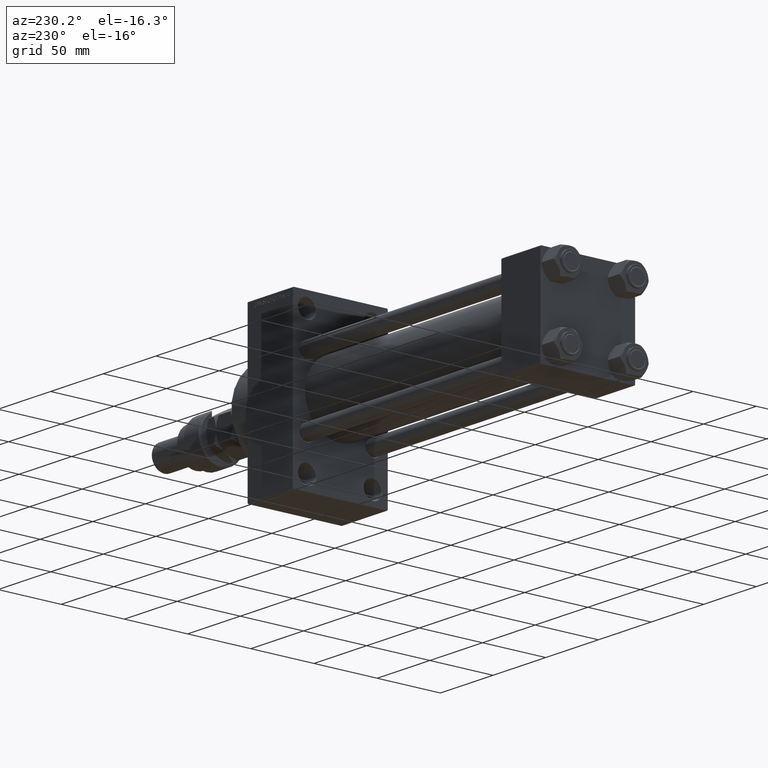
[diagram: clean part render]
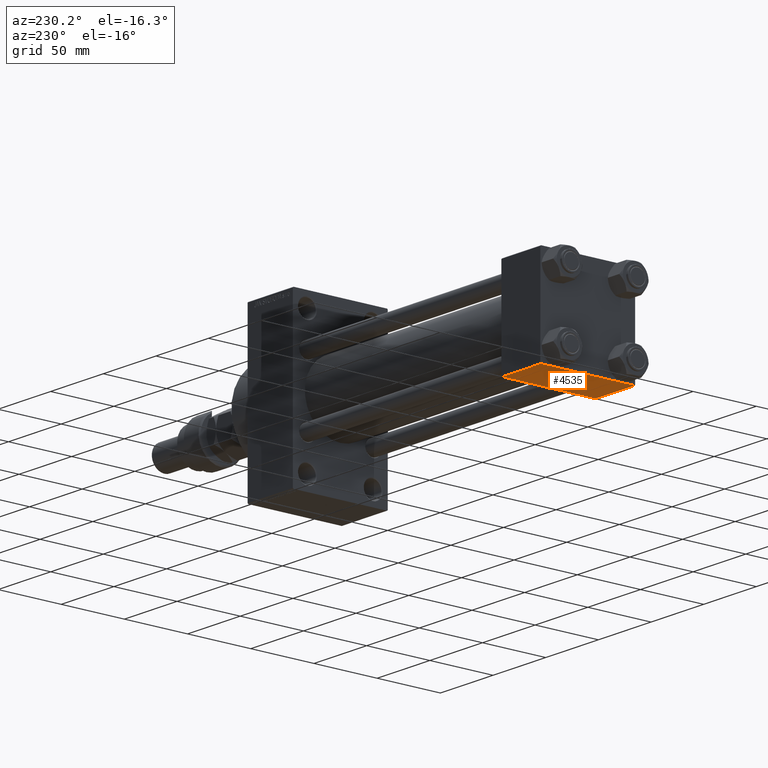
[diagram: same view with one face highlighted and labeled with its STEP entity id]
A machine part, auxiliary view. The second image highlights one B-rep face of the part: STEP entity #4535.
In plain terms, the highlighted planar face has unit normal (0, 0, -1).
Its self-contained STEP definition (entity closure, byte-faithful):
#134 = CARTESIAN_POINT ( 'NONE',  ( 37.00000000000000000, -37.00000000000002132, -37.50000000000000711 ) ) ;
#185 = VERTEX_POINT ( 'NONE', #21539 ) ;
#1035 = LINE ( 'NONE', #9159, #35822 ) ;
#4535 = ADVANCED_FACE ( 'NONE', ( #33857 ), #45282, .T. ) ;
#7749 = ORIENTED_EDGE ( 'NONE', *, *, #20434, .T. ) ;
#8004 = CARTESIAN_POINT ( 'NONE',  ( 37.00000000000000000, 36.99999999999997868, -37.50000000000000000 ) ) ;
#8994 = DIRECTION ( 'NONE',  ( 0.000000000000000000, -1.000000000000000000, -9.251858538542972814E-17 ) ) ;
#9159 = CARTESIAN_POINT ( 'NONE',  ( 0.000000000000000000, -37.00000000000002132, -37.50000000000000711 ) ) ;
#11544 = DIRECTION ( 'NONE',  ( 0.000000000000000000, -1.000000000000000000, -9.251858538542972814E-17 ) ) ;
#12804 = VECTOR ( 'NONE', #33243, 1000.000000000000000 ) ;
#14872 = VECTOR ( 'NONE', #8994, 1000.000000000000000 ) ;
#16605 = LINE ( 'NONE', #28299, #14872 ) ;
#18096 = DIRECTION ( 'NONE',  ( 0.000000000000000000, 9.251858538542972814E-17, -1.000000000000000000 ) ) ;
#20434 = EDGE_CURVE ( 'NONE', #25243, #44861, #16605, .T. ) ;
#21181 = CARTESIAN_POINT ( 'NONE',  ( 0.000000000000000000, -37.00000000000002132, -37.50000000000000711 ) ) ;
#21539 = CARTESIAN_POINT ( 'NONE',  ( 0.000000000000000000, 36.99999999999997868, -37.50000000000000000 ) ) ;
#25243 = VERTEX_POINT ( 'NONE', #8004 ) ;
#28299 = CARTESIAN_POINT ( 'NONE',  ( 37.00000000000000000, 37.49999999999999289, -37.50000000000000000 ) ) ;
#28461 = DIRECTION ( 'NONE',  ( -1.000000000000000000, 0.000000000000000000, 0.000000000000000000 ) ) ;
#29292 = DIRECTION ( 'NONE',  ( 0.000000000000000000, 1.000000000000000000, 9.251858538542972814E-17 ) ) ;
#30853 = LINE ( 'NONE', #46345, #45978 ) ;
#33243 = DIRECTION ( 'NONE',  ( 1.000000000000000000, 0.000000000000000000, 0.000000000000000000 ) ) ;
#33354 = CARTESIAN_POINT ( 'NONE',  ( 37.00000000000000000, 37.49999999999999289, -37.50000000000000000 ) ) ;
#33857 = FACE_OUTER_BOUND ( 'NONE', #45556, .T. ) ;
#34135 = EDGE_CURVE ( 'NONE', #185, #38243, #30853, .T. ) ;
#35418 = ORIENTED_EDGE ( 'NONE', *, *, #34135, .F. ) ;
#35822 = VECTOR ( 'NONE', #28461, 1000.000000000000000 ) ;
#36722 = ORIENTED_EDGE ( 'NONE', *, *, #37765, .T. ) ;
#37765 = EDGE_CURVE ( 'NONE', #185, #25243, #43920, .T. ) ;
#38243 = VERTEX_POINT ( 'NONE', #21181 ) ;
#38789 = ORIENTED_EDGE ( 'NONE', *, *, #48171, .T. ) ;
#39159 = AXIS2_PLACEMENT_3D ( 'NONE', #33354, #18096, #29292 ) ;
#40120 = CARTESIAN_POINT ( 'NONE',  ( 37.00000000000000000, 36.99999999999997868, -37.50000000000000000 ) ) ;
#43920 = LINE ( 'NONE', #40120, #12804 ) ;
#44861 = VERTEX_POINT ( 'NONE', #134 ) ;
#45282 = PLANE ( 'NONE',  #39159 ) ;
#45556 = EDGE_LOOP ( 'NONE', ( #35418, #36722, #7749, #38789 ) ) ;
#45978 = VECTOR ( 'NONE', #11544, 1000.000000000000000 ) ;
#46345 = CARTESIAN_POINT ( 'NONE',  ( 0.000000000000000000, 37.49999999999999289, -37.50000000000000000 ) ) ;
#48171 = EDGE_CURVE ( 'NONE', #44861, #38243, #1035, .T. ) ;